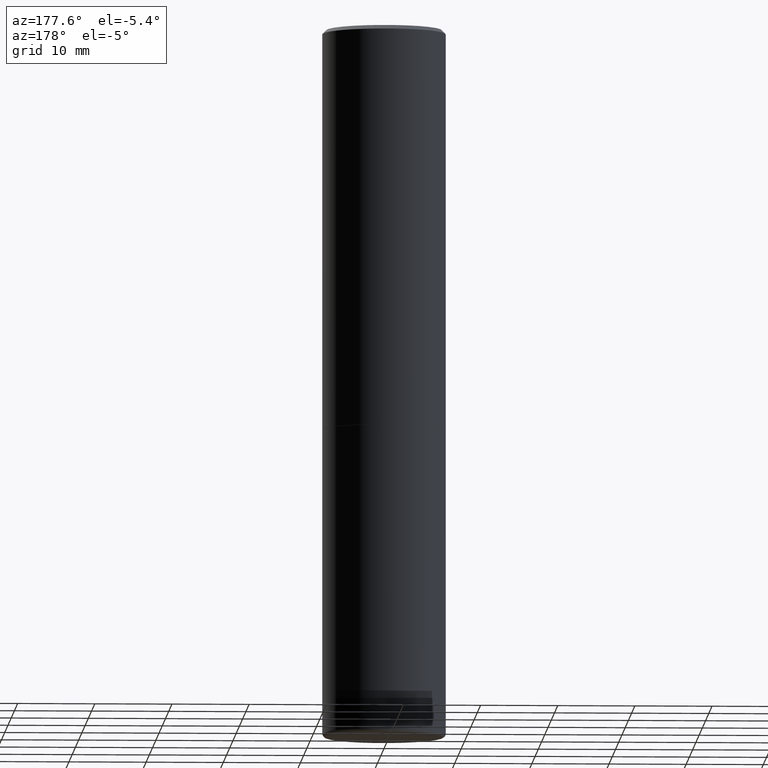
[diagram: clean part render]
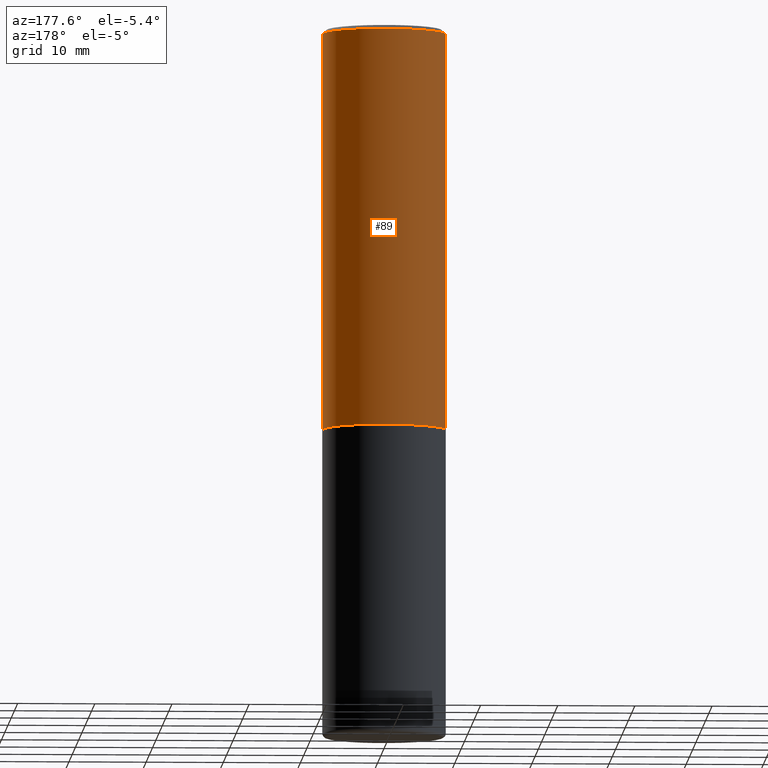
[diagram: same view with one face highlighted and labeled with its STEP entity id]
A machine part, auxiliary view. The second image highlights one B-rep face of the part: STEP entity #89.
In plain terms, the highlighted cylindrical surface (partial cylindrical patch) has radius 7.9997 mm, axis along (-0, 0, 1).
Its self-contained STEP definition (entity closure, byte-faithful):
#1 = VECTOR ( 'NONE', #15, 39.37007874015748143 ) ;
#14 = FACE_OUTER_BOUND ( 'NONE', #24, .T. ) ;
#15 = DIRECTION ( 'NONE',  ( -2.445468806185136877E-29, 3.491481338843145188E-15, 1.000000000000000000 ) ) ;
#21 = CARTESIAN_POINT ( 'NONE',  ( 4.890937612370289799E-31, -6.982962677686315028E-17, -0.02000000000000006981 ) ) ;
#24 = EDGE_LOOP ( 'NONE', ( #405, #128, #313, #126 ) ) ;
#32 = AXIS2_PLACEMENT_3D ( 'NONE', #331, #366, #177 ) ;
#54 = VERTEX_POINT ( 'NONE', #228 ) ;
#62 = AXIS2_PLACEMENT_3D ( 'NONE', #21, #83, #236 ) ;
#81 = LINE ( 'NONE', #268, #1 ) ;
#83 = DIRECTION ( 'NONE',  ( -2.445468806185136597E-29, 3.491481338843145583E-15, 1.000000000000000000 ) ) ;
#89 = ADVANCED_FACE ( 'NONE', ( #14 ), #142, .T. ) ;
#100 = CARTESIAN_POINT ( 'NONE',  ( 0.3149499999999999522, -2.230543471175006661E-15, -0.02000000000000006981 ) ) ;
#103 = AXIS2_PLACEMENT_3D ( 'NONE', #300, #288, #261 ) ;
#124 = EDGE_CURVE ( 'NONE', #205, #249, #168, .T. ) ;
#126 = ORIENTED_EDGE ( 'NONE', *, *, #124, .F. ) ;
#128 = ORIENTED_EDGE ( 'NONE', *, *, #389, .T. ) ;
#142 = CYLINDRICAL_SURFACE ( 'NONE', #103, 0.3149500000000001743 ) ;
#168 = LINE ( 'NONE', #395, #208 ) ;
#177 = DIRECTION ( 'NONE',  ( 1.000000000000000000, -6.982962677686267499E-15, 0.000000000000000000 ) ) ;
#180 = CARTESIAN_POINT ( 'NONE',  ( -0.3149500000000002853, -1.369195024882414317E-15, -2.046199999999999797 ) ) ;
#205 = VERTEX_POINT ( 'NONE', #223 ) ;
#208 = VECTOR ( 'NONE', #365, 39.37007874015748143 ) ;
#209 = CIRCLE ( 'NONE', #62, 0.3149499999999999522 ) ;
#223 = CARTESIAN_POINT ( 'NONE',  ( 0.3149500000000002853, -9.343553210878135066E-15, -2.046199999999999797 ) ) ;
#228 = CARTESIAN_POINT ( 'NONE',  ( -0.3149499999999999522, 2.129454468560426178E-15, -0.02000000000000006981 ) ) ;
#236 = DIRECTION ( 'NONE',  ( 1.000000000000000000, -6.982962677686266711E-15, 0.000000000000000000 ) ) ;
#249 = VERTEX_POINT ( 'NONE', #100 ) ;
#261 = DIRECTION ( 'NONE',  ( 1.000000000000000000, -6.982962677686265922E-15, 4.876176775795935232E-29 ) ) ;
#268 = CARTESIAN_POINT ( 'NONE',  ( -0.3149500000000001743, 2.237854346276436774E-15, -1.549218606675783237E-29 ) ) ;
#286 = CIRCLE ( 'NONE', #32, 0.3149500000000002853 ) ;
#288 = DIRECTION ( 'NONE',  ( -2.445468806185136597E-29, 3.491481338843145583E-15, 1.000000000000000000 ) ) ;
#300 = CARTESIAN_POINT ( 'NONE',  ( 0.000000000000000000, 0.000000000000000000, 0.000000000000000000 ) ) ;
#313 = ORIENTED_EDGE ( 'NONE', *, *, #350, .F. ) ;
#317 = VERTEX_POINT ( 'NONE', #180 ) ;
#331 = CARTESIAN_POINT ( 'NONE',  ( 5.003918271216025517E-29, -7.144269115540843617E-15, -2.046199999999999797 ) ) ;
#332 = EDGE_CURVE ( 'NONE', #205, #317, #286, .T. ) ;
#350 = EDGE_CURVE ( 'NONE', #249, #54, #209, .T. ) ;
#365 = DIRECTION ( 'NONE',  ( -2.445468806185136877E-29, 3.491481338843145188E-15, 1.000000000000000000 ) ) ;
#366 = DIRECTION ( 'NONE',  ( -2.445468806185136597E-29, 3.491481338843145583E-15, 1.000000000000000000 ) ) ;
#389 = EDGE_CURVE ( 'NONE', #317, #54, #81, .T. ) ;
#395 = CARTESIAN_POINT ( 'NONE',  ( 0.3149500000000001743, -2.199284095337290660E-15, 1.535751875536930690E-29 ) ) ;
#405 = ORIENTED_EDGE ( 'NONE', *, *, #332, .T. ) ;